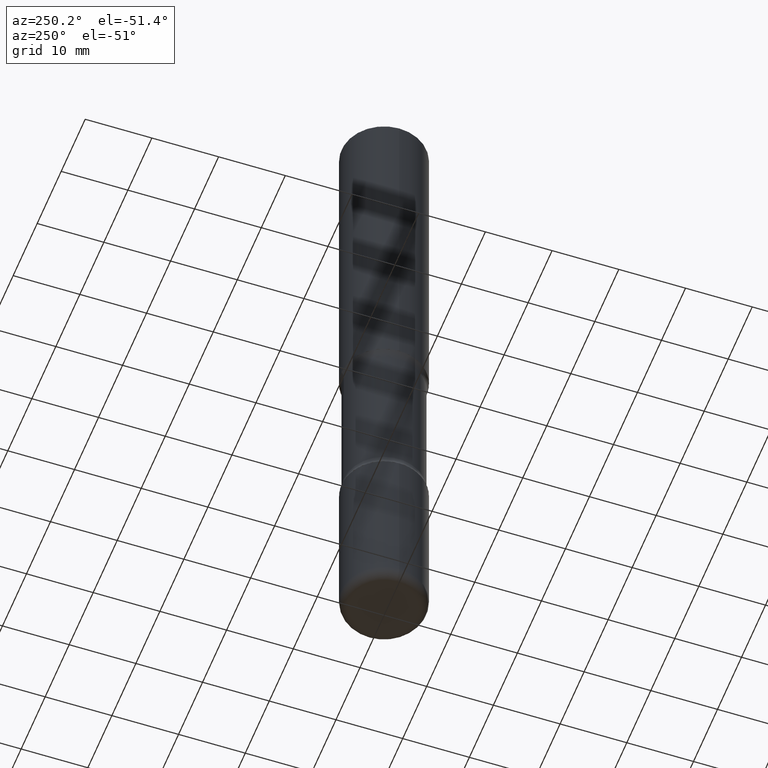
[diagram: clean part render]
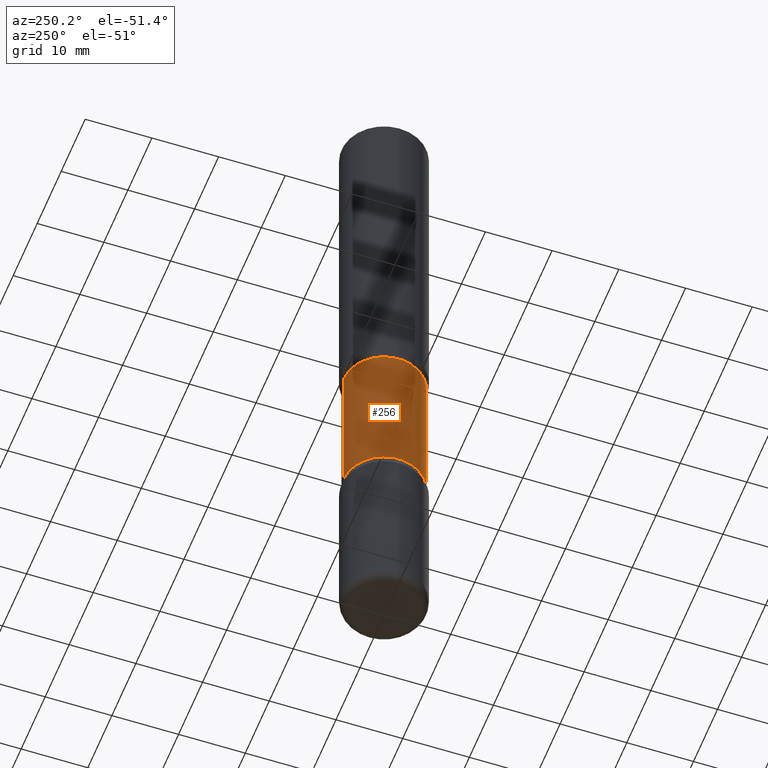
[diagram: same view with one face highlighted and labeled with its STEP entity id]
A machine part, auxiliary view. The second image highlights one B-rep face of the part: STEP entity #256.
In plain terms, the highlighted cylindrical surface (partial cylindrical patch) has radius 6.0325 mm, axis along (0, -0, -1).
Its self-contained STEP definition (entity closure, byte-faithful):
#24 = CARTESIAN_POINT ( 'NONE',  ( -1.672246386956763723E-15, -0.2375000000000074274, -2.054486236794258236 ) ) ;
#45 = CARTESIAN_POINT ( 'NONE',  ( 7.198535619023675570E-29, -1.029083161580289368E-14, -2.945513763205741320 ) ) ;
#48 = AXIS2_PLACEMENT_3D ( 'NONE', #243, #296, #419 ) ;
#65 = EDGE_CURVE ( 'NONE', #172, #229, #424, .T. ) ;
#70 = LINE ( 'NONE', #364, #87 ) ;
#85 = VECTOR ( 'NONE', #521, 39.37007874015748143 ) ;
#87 = VECTOR ( 'NONE', #330, 39.37007874015748143 ) ;
#93 = CARTESIAN_POINT ( 'NONE',  ( 1.658453635950587543E-15, 0.2374999999999862776, -4.000000000000000888 ) ) ;
#153 = DIRECTION ( 'NONE',  ( 6.982962677686265133E-15, 1.000000000000000000, -2.300503573612010239E-15 ) ) ;
#160 = DIRECTION ( 'NONE',  ( 2.530378452311521502E-29, -3.369885892833230986E-15, -1.000000000000000000 ) ) ;
#172 = VERTEX_POINT ( 'NONE', #431 ) ;
#217 = DIRECTION ( 'NONE',  ( 2.530378452311521502E-29, -3.369885892833230986E-15, -1.000000000000000000 ) ) ;
#229 = VERTEX_POINT ( 'NONE', #454 ) ;
#234 = VERTEX_POINT ( 'NONE', #24 ) ;
#243 = CARTESIAN_POINT ( 'NONE',  ( 4.943898765775623630E-29, -7.288170524422749615E-15, -2.054486236794258680 ) ) ;
#256 = ADVANCED_FACE ( 'NONE', ( #372 ), #449, .T. ) ;
#261 = EDGE_CURVE ( 'NONE', #234, #172, #70, .T. ) ;
#268 = CARTESIAN_POINT ( 'NONE',  ( 1.658453635950538436E-15, 0.2374999999999928557, -2.054486236794259568 ) ) ;
#296 = DIRECTION ( 'NONE',  ( 2.530378452311521502E-29, -3.369885892833230986E-15, -1.000000000000000000 ) ) ;
#322 = CARTESIAN_POINT ( 'NONE',  ( 9.866784870866931853E-29, -1.384432990936266734E-14, -4.000000000000000000 ) ) ;
#330 = DIRECTION ( 'NONE',  ( 2.530378452311521502E-29, -3.369885892833230592E-15, -1.000000000000000000 ) ) ;
#364 = CARTESIAN_POINT ( 'NONE',  ( -1.629368274470640415E-15, -0.2375000000000139222, -3.999999999999999556 ) ) ;
#370 = AXIS2_PLACEMENT_3D ( 'NONE', #45, #217, #387 ) ;
#372 = FACE_OUTER_BOUND ( 'NONE', #406, .T. ) ;
#377 = ORIENTED_EDGE ( 'NONE', *, *, #261, .F. ) ;
#387 = DIRECTION ( 'NONE',  ( 6.982962677686265133E-15, 1.000000000000000000, -2.300503573612010239E-15 ) ) ;
#388 = EDGE_CURVE ( 'NONE', #234, #497, #507, .T. ) ;
#403 = AXIS2_PLACEMENT_3D ( 'NONE', #322, #160, #153 ) ;
#406 = EDGE_LOOP ( 'NONE', ( #377, #418, #467, #481 ) ) ;
#418 = ORIENTED_EDGE ( 'NONE', *, *, #388, .T. ) ;
#419 = DIRECTION ( 'NONE',  ( 6.982962677686265133E-15, 1.000000000000000000, -3.450755360418014766E-15 ) ) ;
#424 = CIRCLE ( 'NONE', #370, 0.2375000000000000722 ) ;
#431 = CARTESIAN_POINT ( 'NONE',  ( -1.672246386956739071E-15, -0.2375000000000103417, -2.945513763205740876 ) ) ;
#449 = CYLINDRICAL_SURFACE ( 'NONE', #403, 0.2375000000000000999 ) ;
#454 = CARTESIAN_POINT ( 'NONE',  ( 1.658453635950560525E-15, 0.2374999999999897748, -2.945513763205741764 ) ) ;
#467 = ORIENTED_EDGE ( 'NONE', *, *, #516, .T. ) ;
#481 = ORIENTED_EDGE ( 'NONE', *, *, #65, .F. ) ;
#483 = LINE ( 'NONE', #93, #85 ) ;
#497 = VERTEX_POINT ( 'NONE', #268 ) ;
#507 = CIRCLE ( 'NONE', #48, 0.2375000000000001277 ) ;
#516 = EDGE_CURVE ( 'NONE', #497, #229, #483, .T. ) ;
#521 = DIRECTION ( 'NONE',  ( 2.530378452311521502E-29, -3.369885892833230592E-15, -1.000000000000000000 ) ) ;